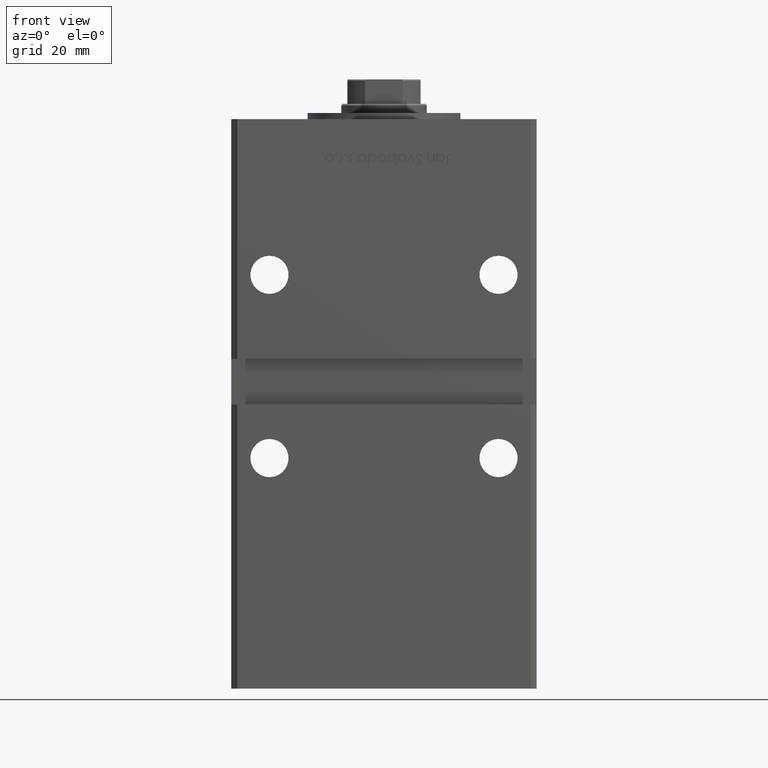
[diagram: clean part render]
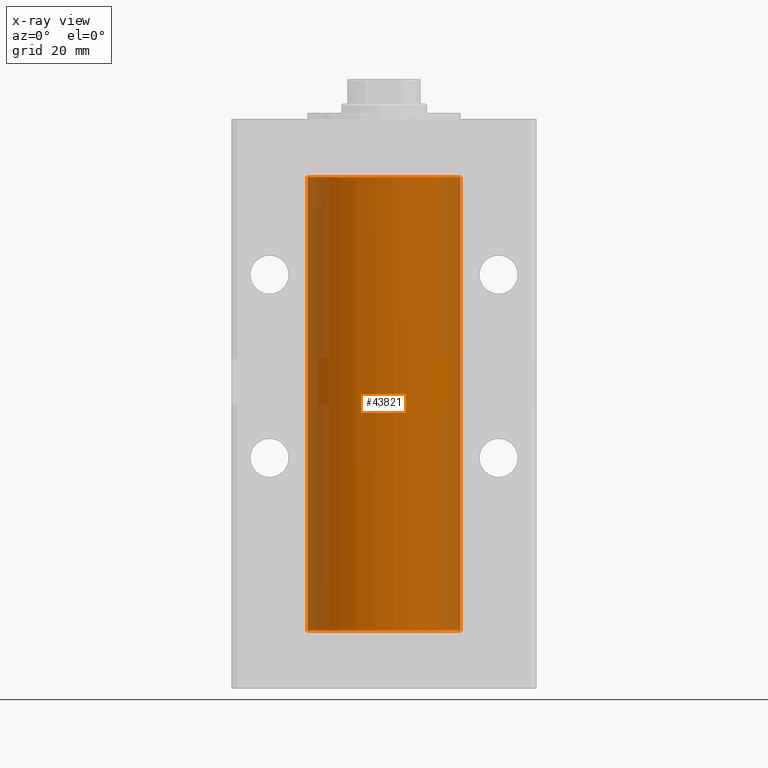
[diagram: x-ray — body ghosted, one internal face saturated and labeled with its STEP entity id]
A machine part, front view, then the same camera in x-ray: the body is ghosted and one INTERNAL B-rep face — a face not visible from any outside direction — is saturated and labeled: STEP entity #43821.
In plain terms, the highlighted cylindrical surface (partial cylindrical patch) has radius 25 mm, axis along (-0, -0, -1).
Its self-contained STEP definition (entity closure, byte-faithful):
#137 = DIRECTION ( 'NONE',  ( -0.000000000000000000, -0.000000000000000000, -1.000000000000000000 ) ) ;
#776 = EDGE_CURVE ( 'NONE', #21145, #36775, #18136, .T. ) ;
#2285 = CARTESIAN_POINT ( 'NONE',  ( 0.000000000000000000, 0.000000000000000000, 148.5000000000000000 ) ) ;
#4959 = ORIENTED_EDGE ( 'NONE', *, *, #7225, .T. ) ;
#7225 = EDGE_CURVE ( 'NONE', #21145, #34570, #19446, .T. ) ;
#8495 = ORIENTED_EDGE ( 'NONE', *, *, #41977, .F. ) ;
#9635 = ORIENTED_EDGE ( 'NONE', *, *, #41317, .T. ) ;
#11544 = FACE_OUTER_BOUND ( 'NONE', #33160, .T. ) ;
#11815 = CARTESIAN_POINT ( 'NONE',  ( 0.000000000000000000, 0.000000000000000000, 148.5000000000000000 ) ) ;
#13165 = DIRECTION ( 'NONE',  ( -0.000000000000000000, 0.000000000000000000, 1.000000000000000000 ) ) ;
#15054 = AXIS2_PLACEMENT_3D ( 'NONE', #11815, #27958, #40090 ) ;
#18136 = LINE ( 'NONE', #34818, #49216 ) ;
#18420 = CIRCLE ( 'NONE', #48538, 25.00000000000000000 ) ;
#18688 = DIRECTION ( 'NONE',  ( -0.000000000000000000, 0.000000000000000000, 1.000000000000000000 ) ) ;
#19446 = CIRCLE ( 'NONE', #49539, 25.00000000000000000 ) ;
#20583 = CARTESIAN_POINT ( 'NONE',  ( 25.00000000000000000, 3.061616997868383043E-15, 148.5000000000000000 ) ) ;
#21145 = VERTEX_POINT ( 'NONE', #44915 ) ;
#23371 = VECTOR ( 'NONE', #137, 1000.000000000000000 ) ;
#24611 = LINE ( 'NONE', #20583, #23371 ) ;
#26210 = DIRECTION ( 'NONE',  ( -0.000000000000000000, -0.000000000000000000, -1.000000000000000000 ) ) ;
#27958 = DIRECTION ( 'NONE',  ( -0.000000000000000000, -0.000000000000000000, -1.000000000000000000 ) ) ;
#32232 = CARTESIAN_POINT ( 'NONE',  ( -25.00000000000000000, 0.000000000000000000, 0.000000000000000000 ) ) ;
#33160 = EDGE_LOOP ( 'NONE', ( #4959, #9635, #8495, #47736 ) ) ;
#34570 = VERTEX_POINT ( 'NONE', #46842 ) ;
#34818 = CARTESIAN_POINT ( 'NONE',  ( -25.00000000000000000, 0.000000000000000000, 148.5000000000000000 ) ) ;
#36562 = CYLINDRICAL_SURFACE ( 'NONE', #15054, 25.00000000000000000 ) ;
#36775 = VERTEX_POINT ( 'NONE', #32232 ) ;
#39967 = DIRECTION ( 'NONE',  ( 1.000000000000000000, 0.000000000000000000, 0.000000000000000000 ) ) ;
#40090 = DIRECTION ( 'NONE',  ( -1.000000000000000000, 0.000000000000000000, 0.000000000000000000 ) ) ;
#41317 = EDGE_CURVE ( 'NONE', #34570, #48831, #24611, .T. ) ;
#41440 = DIRECTION ( 'NONE',  ( 1.000000000000000000, 0.000000000000000000, 0.000000000000000000 ) ) ;
#41977 = EDGE_CURVE ( 'NONE', #36775, #48831, #18420, .T. ) ;
#43821 = ADVANCED_FACE ( 'NONE', ( #11544 ), #36562, .F. ) ;
#44915 = CARTESIAN_POINT ( 'NONE',  ( -25.00000000000000000, 0.000000000000000000, 148.5000000000000000 ) ) ;
#45491 = CARTESIAN_POINT ( 'NONE',  ( 0.000000000000000000, 0.000000000000000000, 0.000000000000000000 ) ) ;
#46842 = CARTESIAN_POINT ( 'NONE',  ( 25.00000000000000000, 3.061616997868383043E-15, 148.5000000000000000 ) ) ;
#47736 = ORIENTED_EDGE ( 'NONE', *, *, #776, .F. ) ;
#48538 = AXIS2_PLACEMENT_3D ( 'NONE', #45491, #13165, #41440 ) ;
#48831 = VERTEX_POINT ( 'NONE', #53247 ) ;
#49216 = VECTOR ( 'NONE', #26210, 1000.000000000000000 ) ;
#49539 = AXIS2_PLACEMENT_3D ( 'NONE', #2285, #18688, #39967 ) ;
#53247 = CARTESIAN_POINT ( 'NONE',  ( 25.00000000000000000, 3.061616997868383043E-15, 0.000000000000000000 ) ) ;